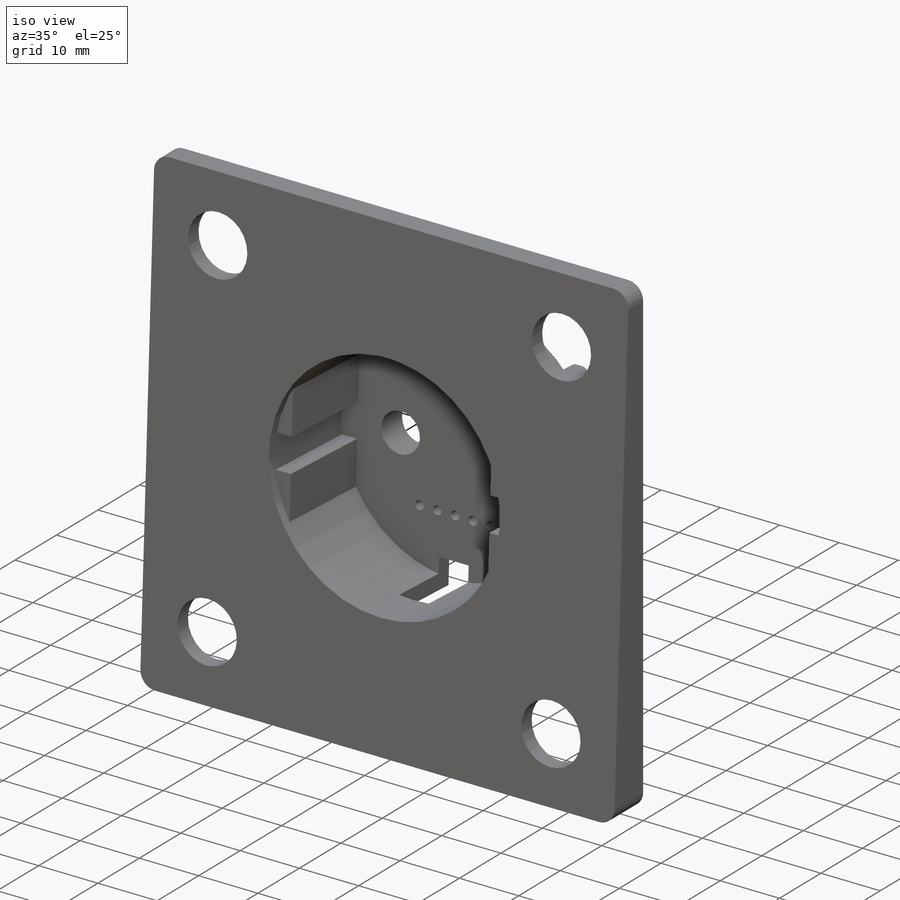
[diagram: iso view]
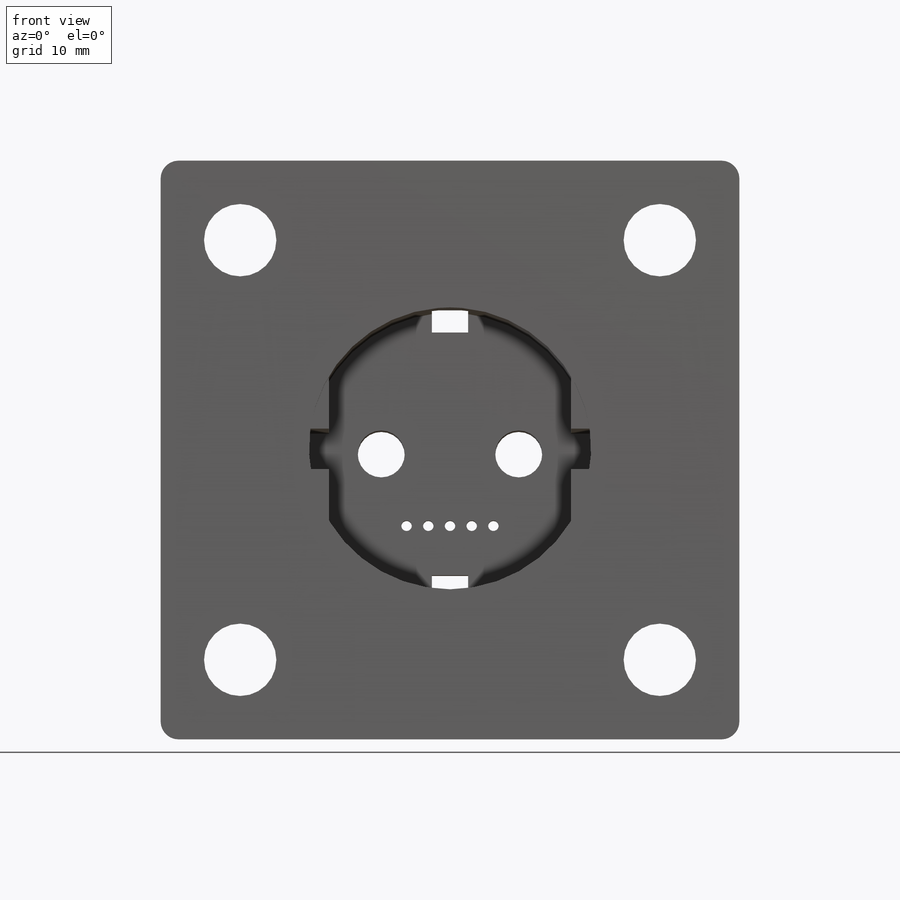
[diagram: front view]
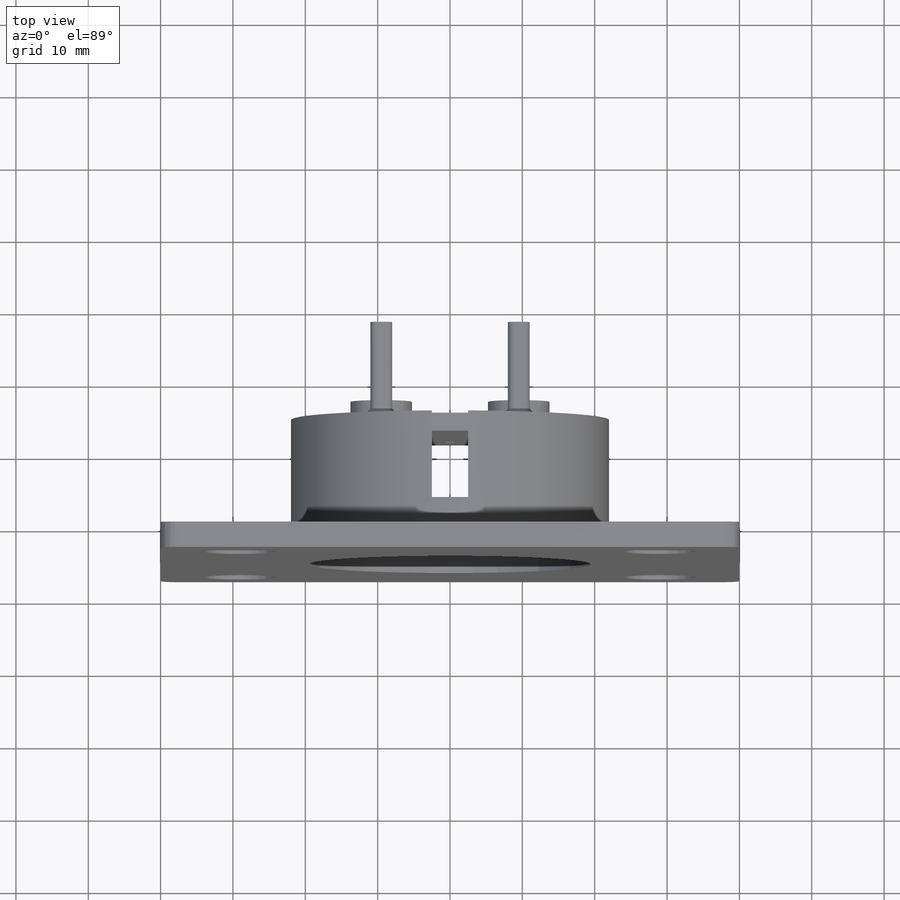
[diagram: top view]
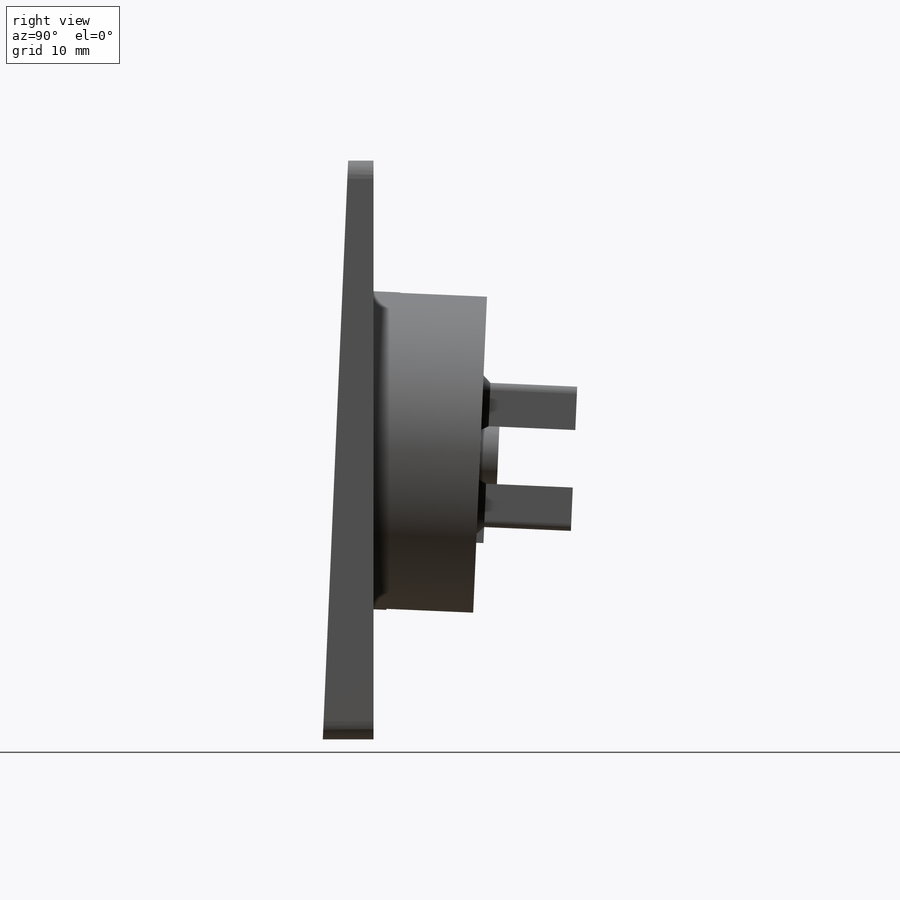
[diagram: right view]
SOLIDWORKS PART (.sldprt)
format: sldprt  version: not decoded by parser v0  size: 762,368 bytes
history: native  units: mm
features: sketch x24, cut_extrude x14, extrude x9, plane x4, chamfer x2, material x1 (+9 scaffold rows collapsed)
feature tree (63):
  scaffold x9  (default folders/planes/origin — collapsed)
  material  "Malzeme <belirli değil>"
  plane  "Ön Düzlem"
  plane  "Üst Düzlem"
  plane  "Sağ Düzlem"
  sketch  "Çizim1"  dims[c1.D5=2.5mm c1.D1=40.0mm c1.D2=80.0mm c1.D3=80.0mm c1.D4=40.0mm c2.D1=7.0mm c2.D5=2.5mm c2.D6=10.0mm c2.D7=5.0mm]
  sketch  "Çizim6"  dims[D1=3.5mm]
  cut_extrude  "Kes-Ekstrüzyon3"  Depth=112.5mm
  sketch  "Çizim7"
  extrude  "Yükseklik-Ekstrüzyon15"  Depth=2.5mm
  sketch  "Çizim8"  dims[D1=39.0mm]
  cut_extrude  "Kes-Ekstrüzyon4"  Depth=17.5mm
  sketch  "Çizim9"  dims[D1=41.5mm]
  extrude  "Yükseklik-Ekstrüzyon16"  Depth=17.5mm
  sketch  "Çizim10"  dims[D1=39.0mm]
  cut_extrude  "Kes-Ekstrüzyon5"  Depth=17.5mm
  sketch  "Çizim11"  dims[D1=41.5mm D2=39.0mm]
  extrude  "Yükseklik-Ekstrüzyon17"  Depth=1.5mm
  chamfer  "Pah1"  Distance=1.5mm Angle=45deg
  sketch  "Çizim12"  dims[D1=41.5mm]
  extrude  "Yükseklik-Ekstrüzyon18"  Depth=2.5mm
  sketch  "Çizim13"  dims[c1.D2=~7.621445mm c1.D3=6.5mm c1.D4=6.5mm c1.D5=7.0mm c1.D1=9.5mm c2.D2=19.0mm c2.D3=9.5mm]
  cut_extrude  "Kes-Ekstrüzyon7"  Depth=2.5mm
  sketch  "Çizim14"  dims[c1.D1=39.0mm c1.D2=2.8mm c1.D3=16.75mm c1.D4=33.5mm c2.D2=5.6mm]
  sketch  "Çizim15"  dims[c1.D4=39.0mm c1.D1=2.5mm c1.D2=2.5mm c1.D3=2.55mm c2.D2=5.0mm]
  cut_extrude  "Kes-Ekstrüzyon8"  Depth=16mm
  sketch  "Çizim16"  dims[D1=5.0mm]
  cut_extrude  "Kes-Ekstrüzyon10"  Depth=12mm
  sketch  "Çizim17"  dims[D1=2.5mm D2=15.0mm D3=7.5mm D4=5.6mm]
  extrude  "Yükseklik-Ekstrüzyon21"  Depth=16mm
  cut_extrude  "Kes-Ekstrüzyon14"  Depth=0.5mm
  sketch  "Çizim19"  dims[c1.D1=1.45mm c1.D3=1.45mm c2.D1=1.45mm c2.D5=1.45mm c2.D6=1.45mm c2.D7=1.45mm c2.D8=1.45mm c2.D2=1.25mm c2.D3=1.25mm c3.D2=1.25mm c3.D5=3.0mm c3.D6=1.25mm c3.D7=3.0mm c3.D8=1.25mm c3.D3=3.0 c3.D4=3.0]
  cut_extrude  "Kes-Ekstrüzyon15"  Depth=20.5mm
  sketch  "Çizim20"  dims[D1=1.0mm D2=1.0mm D3=1.0mm D4=1.0mm]
  extrude  "Yükseklik-Ekstrüzyon23"  Depth=1mm
  sketch  "Çizim22"  dims[c1.D1=8.5mm c1.D2=8.5mm c1.D3=6.5mm c1.D4=6.5mm c1.D5=8.5mm c2.D3=1.0mm c2.D5=1.0mm]
  extrude  "Yükseklik-Ekstrüzyon26"  Depth=2.5mm
  sketch  "Çizim26"  dims[c1.D3=8.5mm c1.D5=1.0mm c1.D1=1.5mm c1.D2=3.0mm c1.D4=6.0mm c1.D6=~2.101643mm c2.D1=1.5mm]
  extrude  "Yükseklik-Ekstrüzyon27"  Depth=13mm
  sketch  "Çizim31"  dims[c1.D1=1.45mm c1.D3=1.45mm c1.D5=1.45mm c2.D3=3.0mm c2.D5=3.0mm c2.D4=3.0 c2.D2=3.0]
  cut_extrude  "Kes-Ekstrüzyon19"  Depth=5mm
  chamfer  "Pah5"  Distance=1mm Angle=45deg
  plane  "Düzlem2"  Offset=0mm
  sketch  "Çizim37"  dims[D3=3.0mm D1=4.25mm D2=22.0mm]
  cut_extrude  "Kes-Ekstrüzyon29"  Depth=21mm
  sketch  "Çizim40"  dims[D1=26.0mm D2=52.0mm]
  cut_extrude  "Kes-Ekstrüzyon30"  Depth=0.9mm
  sketch  "Çizim45"  dims[D1=44.0mm]
  extrude  "Yükseklik-Ekstrüzyon31"  Depth=17.5mm
  sketch  "Çizim46"
  cut_extrude  "Kes-Ekstrüzyon32"  Depth=12mm
  sketch  "Çizim47"  dims[D3=10.0mm D1=11.0mm D2=11.0mm D4=4.0]
  cut_extrude  "Kes-Ekstrüzyon33"  Depth=24mm
  sketch  "Çizim48"
  cut_extrude  "Kes-Ekstrüzyon34"  [1 undecoded]
decode coverage: 45 of 49 modeling features carry decoded parameters
note: ~ marks probable driven/reference dimensions
note: 1 parameter value undecoded
note: suppression state not decoded; provenance and decode notes live in map.json
